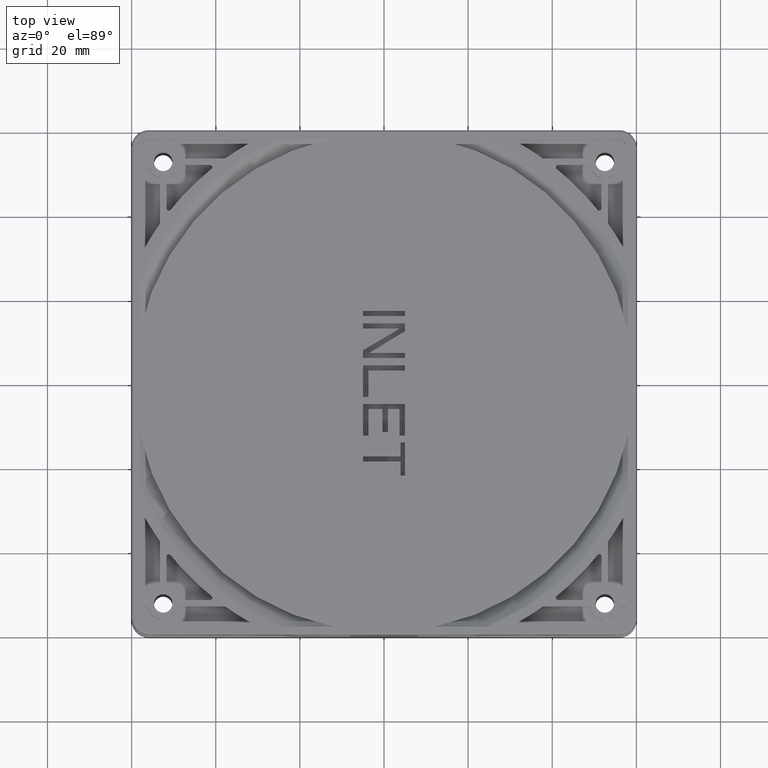
[diagram: clean part render]
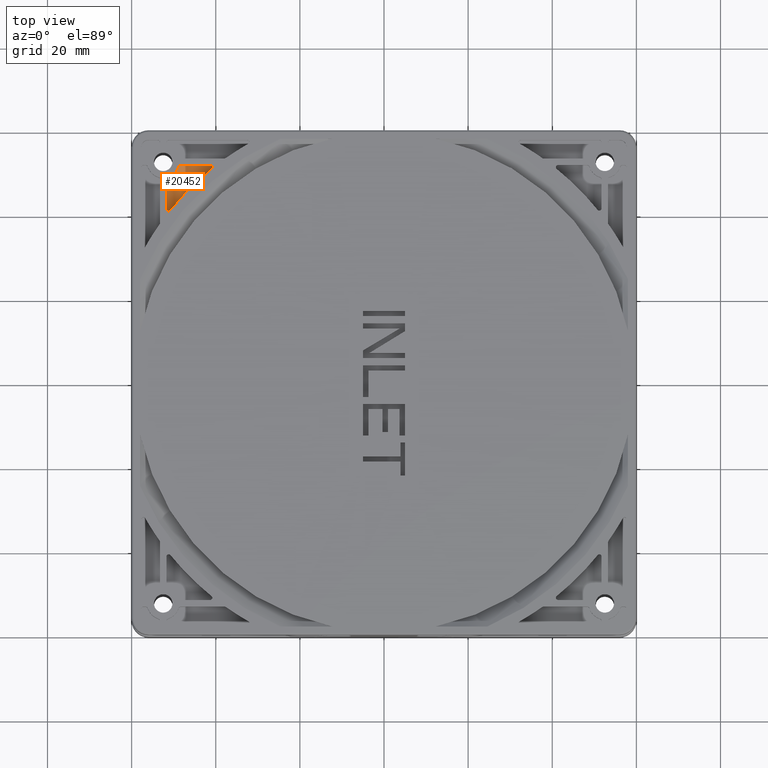
[diagram: same view with one face highlighted and labeled with its STEP entity id]
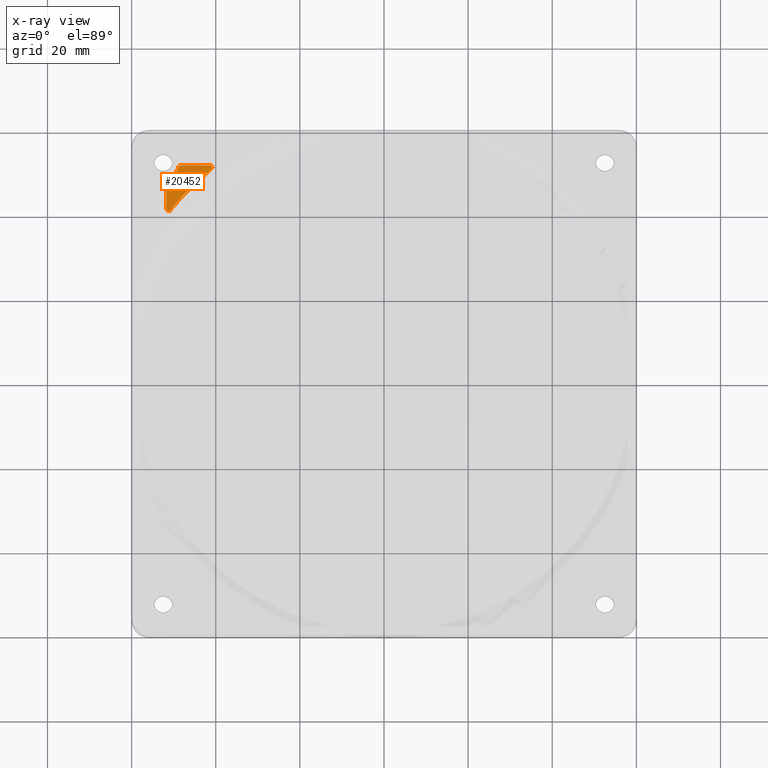
[diagram: x-ray of the same camera — body ghosted, the highlighted face saturated]
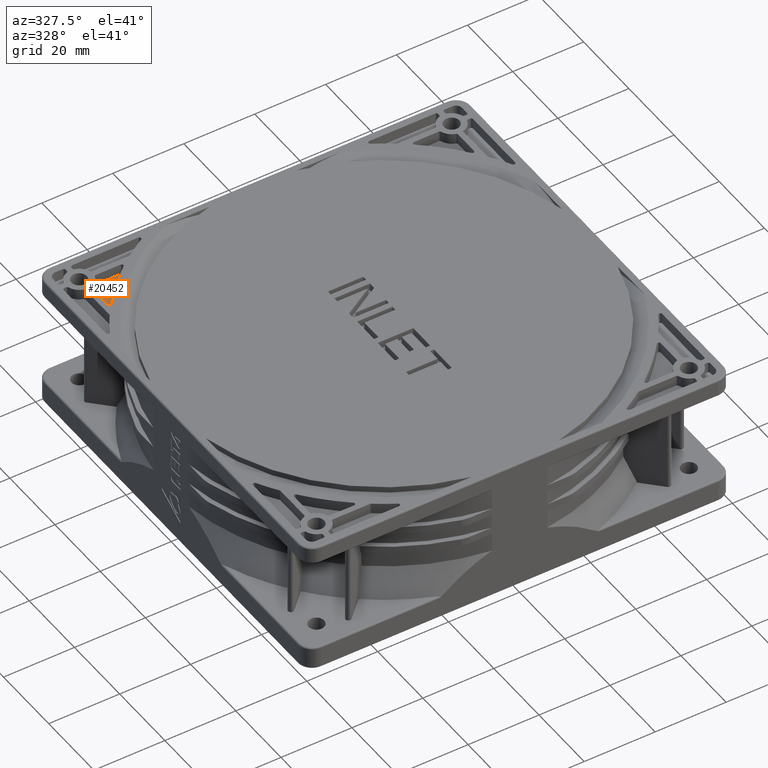
[diagram: same view with one face highlighted and labeled with its STEP entity id]
A machine part, top view. The second image highlights one B-rep face of the part: STEP entity #20452.
The next image is the same camera in x-ray: the body ghosted, the highlighted face saturated — about 0% of this face is hidden behind the body in this view.
A second angle (auxiliary view) of the same face is appended — the face is thin or edge-on in the first view.
In plain terms, the highlighted planar face has unit normal (0, 0, 1).
Its self-contained STEP definition (entity closure, byte-faithful):
#4507=CARTESIAN_POINT('',(0.E0,0.E0,-3.E0));
#4508=DIRECTION('',(0.E0,0.E0,1.E0));
#4509=DIRECTION('',(-6.281391450644E-1,7.781010309964E-1,0.E0));
#4510=AXIS2_PLACEMENT_3D('',#4507,#4508,#4509);
#4512=CARTESIAN_POINT('',(-5.12E1,4.133037623831E1,-3.E0));
#4513=DIRECTION('',(0.E0,0.E0,-1.E0));
#4514=DIRECTION('',(7.781155015909E-1,-6.281212193390E-1,0.E0));
#4515=AXIS2_PLACEMENT_3D('',#4512,#4513,#4514);
#4517=DIRECTION('',(0.E0,1.E0,0.E0));
#4518=VECTOR('',#4517,7.018419117250E0);
#4519=CARTESIAN_POINT('',(-5.17E1,4.133037623831E1,-3.E0));
#4520=LINE('',#4519,#4518);
#4521=CARTESIAN_POINT('',(-5.12E1,4.834879535556E1,-3.E0));
#4522=DIRECTION('',(0.E0,0.E0,-1.E0));
#4523=DIRECTION('',(-1.E0,0.E0,0.E0));
#4524=AXIS2_PLACEMENT_3D('',#4521,#4522,#4523);
#4526=CARTESIAN_POINT('',(-5.25E1,5.25E1,-3.E0));
#4527=DIRECTION('',(0.E0,0.E0,1.E0));
#4528=DIRECTION('',(2.988505747525E-1,-9.542999182490E-1,0.E0));
#4529=AXIS2_PLACEMENT_3D('',#4526,#4527,#4528);
#4531=CARTESIAN_POINT('',(-4.834879535556E1,5.12E1,-3.E0));
#4532=DIRECTION('',(0.E0,0.E0,-1.E0));
#4533=DIRECTION('',(-9.542999183365E-1,2.988505744730E-1,0.E0));
#4534=AXIS2_PLACEMENT_3D('',#4531,#4532,#4533);
#4536=DIRECTION('',(1.E0,0.E0,0.E0));
#4537=VECTOR('',#4536,7.018419117250E0);
#4538=CARTESIAN_POINT('',(-4.834879535556E1,5.17E1,-3.E0));
#4539=LINE('',#4538,#4537);
#4540=CARTESIAN_POINT('',(-4.133037623831E1,5.12E1,-3.E0));
#4541=DIRECTION('',(0.E0,0.E0,1.E0));
#4542=DIRECTION('',(6.257772805131E-1,-7.800017917888E-1,0.E0));
#4543=AXIS2_PLACEMENT_3D('',#4540,#4541,#4542);
#13869=CARTESIAN_POINT('',(-5.17E1,4.133037623831E1,-3.E0));
#13870=VERTEX_POINT('',#13869);
#13871=CARTESIAN_POINT('',(-5.081094224920E1,4.101631562864E1,-3.E0));
#13872=VERTEX_POINT('',#13871);
#13873=CARTESIAN_POINT('',(-5.17E1,4.834879535556E1,-3.E0));
#13874=VERTEX_POINT('',#13873);
#13875=CARTESIAN_POINT('',(-5.134942528723E1,4.882594531473E1,-3.E0));
#13876=VERTEX_POINT('',#13875);
#13877=CARTESIAN_POINT('',(-4.882594531473E1,5.134942528724E1,-3.E0));
#13878=VERTEX_POINT('',#13877);
#13879=CARTESIAN_POINT('',(-4.101748617271E1,5.080999732407E1,-3.E0));
#13880=VERTEX_POINT('',#13879);
#13881=CARTESIAN_POINT('',(-4.834879535556E1,5.17E1,-3.E0));
#13882=VERTEX_POINT('',#13881);
#13883=CARTESIAN_POINT('',(-4.133037623831E1,5.17E1,-3.E0));
#13884=VERTEX_POINT('',#13883);
#20433=CARTESIAN_POINT('',(0.E0,0.E0,-3.E0));
#20434=DIRECTION('',(0.E0,0.E0,1.E0));
#20435=DIRECTION('',(1.E0,0.E0,0.E0));
#20436=AXIS2_PLACEMENT_3D('',#20433,#20434,#20435);
#20437=PLANE('',#20436);
#20439=ORIENTED_EDGE('',*,*,#20438,.T.);
#20440=ORIENTED_EDGE('',*,*,#20384,.T.);
#20441=ORIENTED_EDGE('',*,*,#20399,.T.);
#20442=ORIENTED_EDGE('',*,*,#20414,.T.);
#20443=ORIENTED_EDGE('',*,*,#20424,.T.);
#20445=ORIENTED_EDGE('',*,*,#20444,.T.);
#20447=ORIENTED_EDGE('',*,*,#20446,.T.);
#20449=ORIENTED_EDGE('',*,*,#20448,.F.);
#20450=EDGE_LOOP('',(#20439,#20440,#20441,#20442,#20443,#20445,#20447,#20449));
#20451=FACE_OUTER_BOUND('',#20450,.F.);
#20452=ADVANCED_FACE('',(#20451),#20437,.T.);
#4511=CIRCLE('',#4510,6.53E1);
#4516=CIRCLE('',#4515,5.E-1);
#4525=CIRCLE('',#4524,5.E-1);
#4530=CIRCLE('',#4529,3.85E0);
#4535=CIRCLE('',#4534,5.E-1);
#4544=CIRCLE('',#4543,5.E-1);
#20384=EDGE_CURVE('',#13872,#13870,#4516,.T.);
#20399=EDGE_CURVE('',#13870,#13874,#4520,.T.);
#20414=EDGE_CURVE('',#13874,#13876,#4525,.T.);
#20424=EDGE_CURVE('',#13876,#13878,#4530,.T.);
#20438=EDGE_CURVE('',#13880,#13872,#4511,.T.);
#20444=EDGE_CURVE('',#13878,#13882,#4535,.T.);
#20446=EDGE_CURVE('',#13882,#13884,#4539,.T.);
#20448=EDGE_CURVE('',#13880,#13884,#4544,.T.);